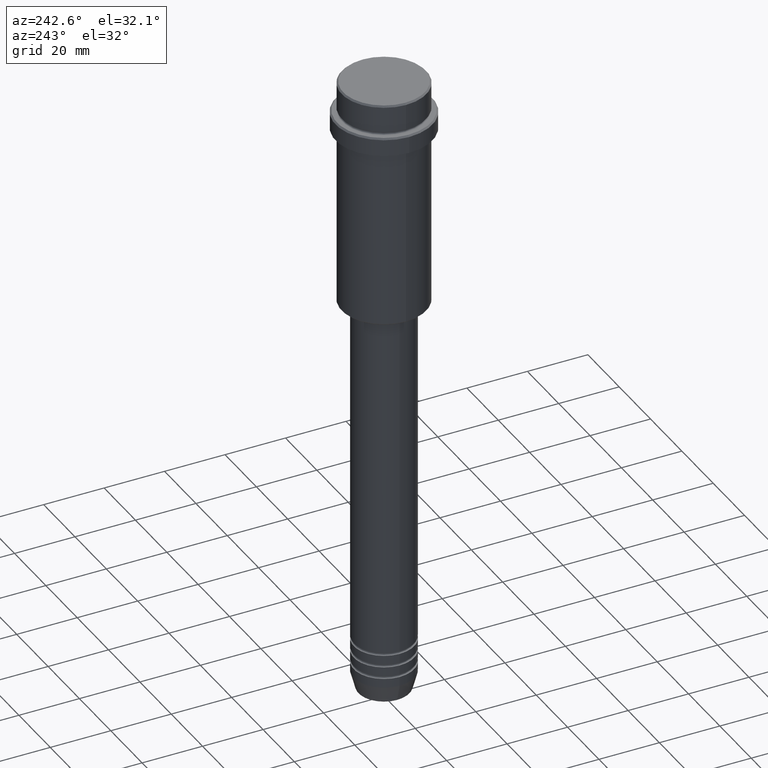
[diagram: clean part render]
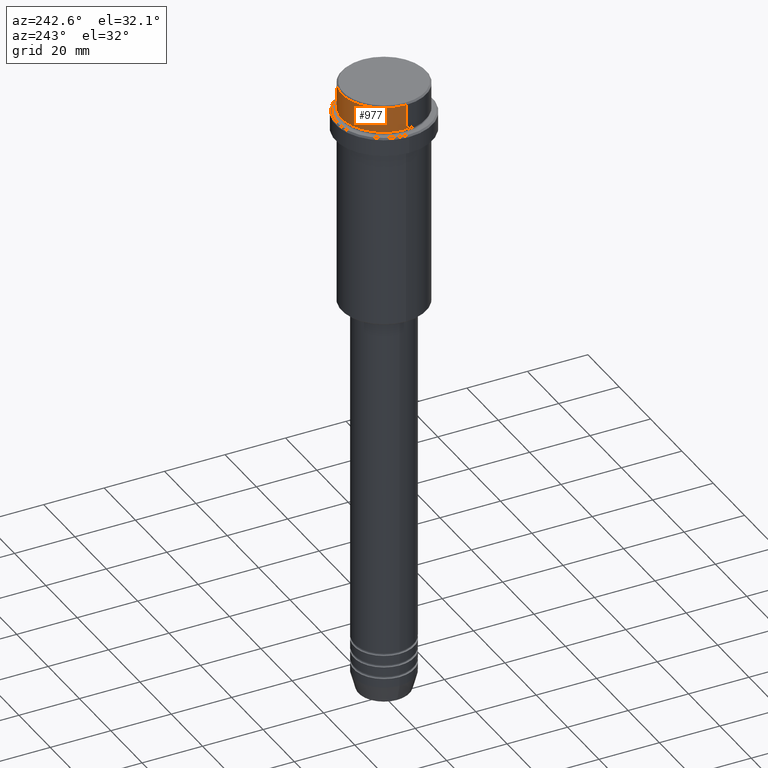
[diagram: same view with one face highlighted and labeled with its STEP entity id]
A machine part, auxiliary view. The second image highlights one B-rep face of the part: STEP entity #977.
In plain terms, the highlighted cylindrical surface (partial cylindrical patch) has radius 14 mm, axis along (-0, -0, 1).
Its self-contained STEP definition (entity closure, byte-faithful):
#9 = CIRCLE ( 'NONE', #760, 13.99999999999998401 ) ;
#20 = DIRECTION ( 'NONE',  ( -0.000000000000000000, -0.000000000000000000, 1.000000000000000000 ) ) ;
#58 = DIRECTION ( 'NONE',  ( 1.000000000000000000, 0.000000000000000000, 0.000000000000000000 ) ) ;
#89 = EDGE_CURVE ( 'NONE', #210, #599, #604, .T. ) ;
#91 = ORIENTED_EDGE ( 'NONE', *, *, #296, .F. ) ;
#187 = ORIENTED_EDGE ( 'NONE', *, *, #679, .T. ) ;
#210 = VERTEX_POINT ( 'NONE', #1115 ) ;
#228 = LINE ( 'NONE', #1118, #781 ) ;
#296 = EDGE_CURVE ( 'NONE', #423, #697, #228, .T. ) ;
#423 = VERTEX_POINT ( 'NONE', #1014 ) ;
#452 = DIRECTION ( 'NONE',  ( 1.000000000000000000, 0.000000000000000000, 0.000000000000000000 ) ) ;
#483 = VECTOR ( 'NONE', #1068, 1000.000000000000000 ) ;
#538 = EDGE_LOOP ( 'NONE', ( #187, #616, #1299, #91 ) ) ;
#563 = CARTESIAN_POINT ( 'NONE',  ( -13.99999999999998401, 1.714505518806292666E-15, -0.4999999999999917843 ) ) ;
#599 = VERTEX_POINT ( 'NONE', #563 ) ;
#603 = DIRECTION ( 'NONE',  ( 0.000000000000000000, 0.000000000000000000, -1.000000000000000000 ) ) ;
#604 = LINE ( 'NONE', #939, #483 ) ;
#616 = ORIENTED_EDGE ( 'NONE', *, *, #89, .T. ) ;
#636 = CARTESIAN_POINT ( 'NONE',  ( 13.99999999999998401, 0.000000000000000000, -0.4999999999999917843 ) ) ;
#651 = FACE_OUTER_BOUND ( 'NONE', #538, .T. ) ;
#677 = AXIS2_PLACEMENT_3D ( 'NONE', #1140, #1133, #58 ) ;
#679 = EDGE_CURVE ( 'NONE', #423, #210, #1357, .T. ) ;
#697 = VERTEX_POINT ( 'NONE', #636 ) ;
#760 = AXIS2_PLACEMENT_3D ( 'NONE', #1273, #603, #1036 ) ;
#781 = VECTOR ( 'NONE', #890, 1000.000000000000000 ) ;
#858 = CARTESIAN_POINT ( 'NONE',  ( 0.000000000000000000, 0.000000000000000000, -8.999999999999998224 ) ) ;
#890 = DIRECTION ( 'NONE',  ( -0.000000000000000000, -0.000000000000000000, 1.000000000000000000 ) ) ;
#939 = CARTESIAN_POINT ( 'NONE',  ( -13.99999999999998401, 1.714505518806292666E-15, 0.000000000000000000 ) ) ;
#977 = ADVANCED_FACE ( 'NONE', ( #651 ), #1219, .T. ) ;
#992 = AXIS2_PLACEMENT_3D ( 'NONE', #858, #20, #452 ) ;
#1014 = CARTESIAN_POINT ( 'NONE',  ( 13.99999999999997158, 0.000000000000000000, -8.999999999999998224 ) ) ;
#1036 = DIRECTION ( 'NONE',  ( 1.000000000000000000, 0.000000000000000000, 0.000000000000000000 ) ) ;
#1068 = DIRECTION ( 'NONE',  ( -0.000000000000000000, -0.000000000000000000, 1.000000000000000000 ) ) ;
#1115 = CARTESIAN_POINT ( 'NONE',  ( -13.99999999999997158, 1.714505518806291877E-15, -8.999999999999998224 ) ) ;
#1118 = CARTESIAN_POINT ( 'NONE',  ( 13.99999999999998401, 0.000000000000000000, 0.000000000000000000 ) ) ;
#1133 = DIRECTION ( 'NONE',  ( -0.000000000000000000, -0.000000000000000000, 1.000000000000000000 ) ) ;
#1140 = CARTESIAN_POINT ( 'NONE',  ( 0.000000000000000000, 0.000000000000000000, 0.000000000000000000 ) ) ;
#1219 = CYLINDRICAL_SURFACE ( 'NONE', #677, 13.99999999999998401 ) ;
#1262 = EDGE_CURVE ( 'NONE', #599, #697, #9, .T. ) ;
#1273 = CARTESIAN_POINT ( 'NONE',  ( 0.000000000000000000, 0.000000000000000000, -0.4999999999999917843 ) ) ;
#1299 = ORIENTED_EDGE ( 'NONE', *, *, #1262, .T. ) ;
#1357 = CIRCLE ( 'NONE', #992, 13.99999999999997158 ) ;